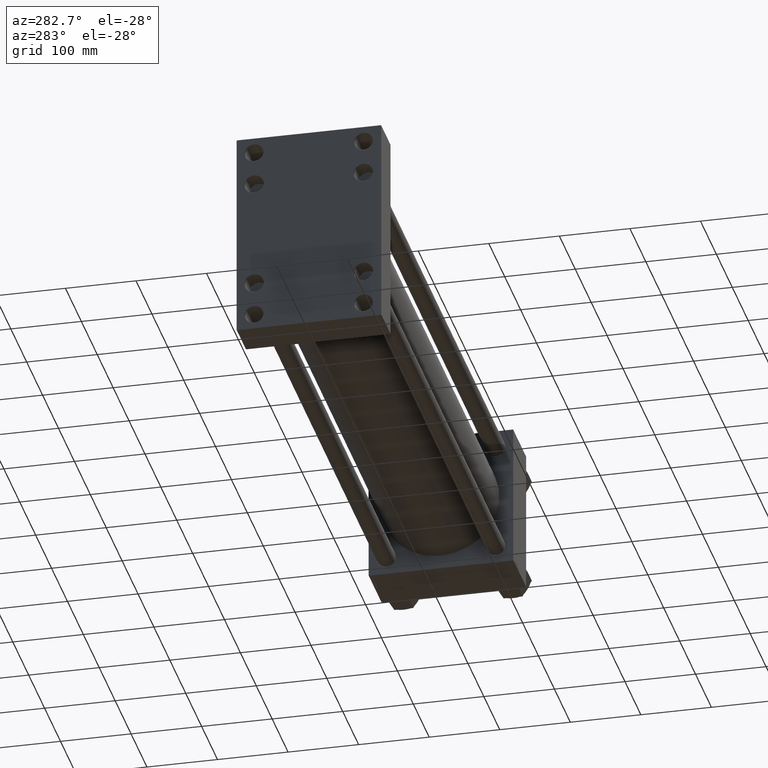
[diagram: clean part render]
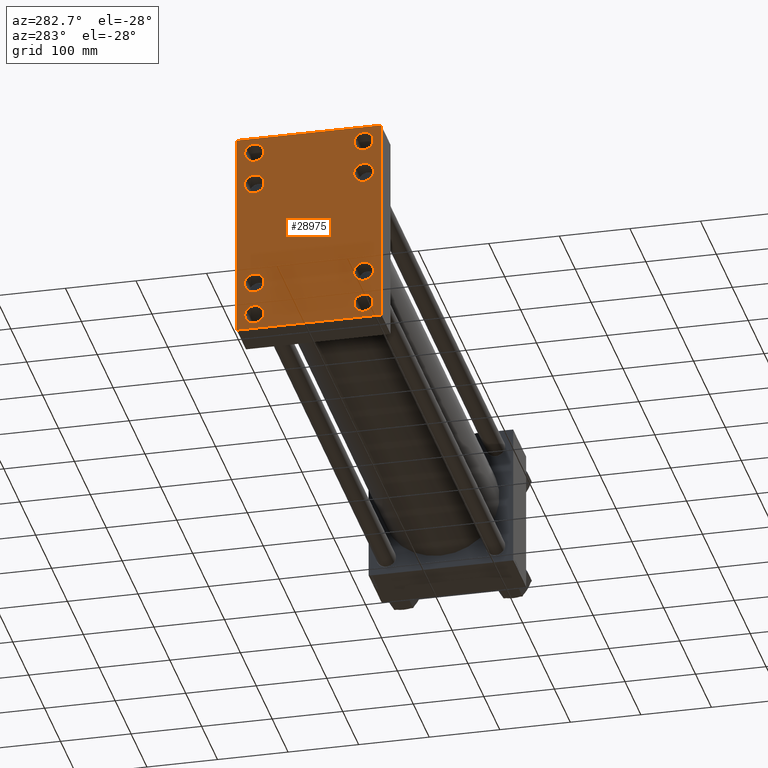
[diagram: same view with one face highlighted and labeled with its STEP entity id]
A machine part, auxiliary view. The second image highlights one B-rep face of the part: STEP entity #28975.
In plain terms, the highlighted planar face has unit normal (-1, 0, 0).
Its self-contained STEP definition (entity closure, byte-faithful):
#446 = EDGE_LOOP ( 'NONE', ( #43270, #36399, #3071, #38597, #12817, #31671, #42625, #12752 ) ) ;
#449 = EDGE_LOOP ( 'NONE', ( #43681, #2051 ) ) ;
#547 = AXIS2_PLACEMENT_3D ( 'NONE', #47538, #44466, #12550 ) ;
#579 = AXIS2_PLACEMENT_3D ( 'NONE', #5031, #16803, #28792 ) ;
#884 = LINE ( 'NONE', #31034, #19689 ) ;
#1219 = CARTESIAN_POINT ( 'NONE',  ( 0.000000000000000000, 101.9999999999999574, 148.5000000000000000 ) ) ;
#1407 = EDGE_CURVE ( 'NONE', #38072, #29740, #38946, .T. ) ;
#1585 = DIRECTION ( 'NONE',  ( 1.000000000000000000, 0.000000000000000000, 0.000000000000000000 ) ) ;
#1621 = CARTESIAN_POINT ( 'NONE',  ( 0.000000000000000000, -77.44999999999996021, -91.45000000000021600 ) ) ;
#1645 = EDGE_CURVE ( 'NONE', #17094, #46765, #37625, .T. ) ;
#1657 = DIRECTION ( 'NONE',  ( 0.000000000000000000, 0.000000000000000000, 1.000000000000000000 ) ) ;
#1718 = CARTESIAN_POINT ( 'NONE',  ( 0.000000000000000000, 77.44999999999998863, -91.45000000000020179 ) ) ;
#1993 = DIRECTION ( 'NONE',  ( 0.000000000000000000, 0.000000000000000000, 1.000000000000000000 ) ) ;
#2051 = ORIENTED_EDGE ( 'NONE', *, *, #4175, .T. ) ;
#2205 = VERTEX_POINT ( 'NONE', #15692 ) ;
#2877 = CARTESIAN_POINT ( 'NONE',  ( -0.000000000000000000, 125.2500000000028280, -125.2499999999958646 ) ) ;
#2905 = ORIENTED_EDGE ( 'NONE', *, *, #17101, .T. ) ;
#3071 = ORIENTED_EDGE ( 'NONE', *, *, #34965, .T. ) ;
#3515 = FACE_BOUND ( 'NONE', #49281, .T. ) ;
#3551 = CARTESIAN_POINT ( 'NONE',  ( 0.000000000000000000, 77.50000000000001421, 126.4999999999999716 ) ) ;
#3753 = CARTESIAN_POINT ( 'NONE',  ( 0.000000000000000000, 0.000000000000000000, 0.000000000000000000 ) ) ;
#4008 = FACE_BOUND ( 'NONE', #449, .T. ) ;
#4175 = EDGE_CURVE ( 'NONE', #33630, #34883, #15253, .T. ) ;
#4274 = ORIENTED_EDGE ( 'NONE', *, *, #27127, .T. ) ;
#4317 = VECTOR ( 'NONE', #39006, 1000.000000000000000 ) ;
#4814 = DIRECTION ( 'NONE',  ( 1.000000000000000000, 0.000000000000000000, 0.000000000000000000 ) ) ;
#4904 = CIRCLE ( 'NONE', #18010, 13.49999999999995737 ) ;
#5031 = CARTESIAN_POINT ( 'NONE',  ( 0.000000000000000000, -77.44999999999996021, 77.45000000000003126 ) ) ;
#5851 = DIRECTION ( 'NONE',  ( 0.000000000000000000, 0.000000000000000000, -1.000000000000000000 ) ) ;
#6092 = DIRECTION ( 'NONE',  ( 0.000000000000000000, 0.000000000000000000, 1.000000000000000000 ) ) ;
#6565 = DIRECTION ( 'NONE',  ( 0.000000000000000000, -1.000000000000000000, 0.000000000000000000 ) ) ;
#6738 = CARTESIAN_POINT ( 'NONE',  ( -0.000000000000000000, 125.2499999999999716, 125.2499999999999716 ) ) ;
#7604 = FACE_BOUND ( 'NONE', #47714, .T. ) ;
#8157 = CIRCLE ( 'NONE', #14720, 13.49999999999995737 ) ;
#8227 = CARTESIAN_POINT ( 'NONE',  ( 0.000000000000000000, -101.9999999999999574, 148.4999999999999716 ) ) ;
#8347 = CARTESIAN_POINT ( 'NONE',  ( 0.000000000000000000, -77.44999999999996021, 91.45000000000021600 ) ) ;
#8373 = CIRCLE ( 'NONE', #49182, 14.00000000000017941 ) ;
#8960 = AXIS2_PLACEMENT_3D ( 'NONE', #35012, #42428, #27102 ) ;
#9098 = CIRCLE ( 'NONE', #41773, 13.49999999999995737 ) ;
#9357 = CARTESIAN_POINT ( 'NONE',  ( 0.000000000000000000, -77.49999999999998579, 139.9999999999999432 ) ) ;
#9748 = DIRECTION ( 'NONE',  ( 0.000000000000000000, 0.000000000000000000, 1.000000000000000000 ) ) ;
#9920 = CARTESIAN_POINT ( 'NONE',  ( 0.000000000000000000, -101.9999999999999574, -148.5000000000000284 ) ) ;
#10105 = DIRECTION ( 'NONE',  ( 0.000000000000000000, 0.000000000000000000, 1.000000000000000000 ) ) ;
#10356 = DIRECTION ( 'NONE',  ( 1.000000000000000000, 0.000000000000000000, 0.000000000000000000 ) ) ;
#10499 = DIRECTION ( 'NONE',  ( 1.000000000000000000, 0.000000000000000000, 0.000000000000000000 ) ) ;
#10594 = EDGE_LOOP ( 'NONE', ( #39011, #17693 ) ) ;
#10817 = CARTESIAN_POINT ( 'NONE',  ( 0.000000000000000000, -77.44999999999996021, -77.45000000000003126 ) ) ;
#10885 = EDGE_CURVE ( 'NONE', #46136, #43496, #8157, .T. ) ;
#11055 = EDGE_CURVE ( 'NONE', #29943, #26909, #20388, .T. ) ;
#11303 = DIRECTION ( 'NONE',  ( 1.000000000000000000, 0.000000000000000000, 0.000000000000000000 ) ) ;
#11325 = EDGE_CURVE ( 'NONE', #47406, #32398, #47335, .T. ) ;
#12550 = DIRECTION ( 'NONE',  ( 0.000000000000000000, 0.000000000000000000, 1.000000000000000000 ) ) ;
#12741 = EDGE_CURVE ( 'NONE', #43496, #46136, #4904, .T. ) ;
#12752 = ORIENTED_EDGE ( 'NONE', *, *, #41757, .T. ) ;
#12817 = ORIENTED_EDGE ( 'NONE', *, *, #39392, .F. ) ;
#12843 = AXIS2_PLACEMENT_3D ( 'NONE', #3551, #23483, #50555 ) ;
#13036 = EDGE_CURVE ( 'NONE', #48790, #47262, #34553, .T. ) ;
#13513 = CARTESIAN_POINT ( 'NONE',  ( 0.000000000000000000, -77.44999999999996021, -77.45000000000003126 ) ) ;
#13540 = ORIENTED_EDGE ( 'NONE', *, *, #31571, .T. ) ;
#14557 = FACE_BOUND ( 'NONE', #22699, .T. ) ;
#14720 = AXIS2_PLACEMENT_3D ( 'NONE', #28159, #1585, #20255 ) ;
#14825 = CARTESIAN_POINT ( 'NONE',  ( 0.000000000000000000, -77.49999999999998579, -113.0000000000000711 ) ) ;
#14935 = EDGE_CURVE ( 'NONE', #2205, #46765, #884, .T. ) ;
#15046 = FACE_BOUND ( 'NONE', #31768, .T. ) ;
#15080 = CARTESIAN_POINT ( 'NONE',  ( 0.000000000000000000, -77.44999999999996021, 77.45000000000003126 ) ) ;
#15253 = CIRCLE ( 'NONE', #12843, 13.49999999999995737 ) ;
#15387 = DIRECTION ( 'NONE',  ( -0.000000000000000000, -0.7071067811865279218, -0.7071067811865672237 ) ) ;
#15692 = CARTESIAN_POINT ( 'NONE',  ( 0.000000000000000000, -102.4999999999999716, 147.9999999999999716 ) ) ;
#15770 = VERTEX_POINT ( 'NONE', #19691 ) ;
#16038 = CARTESIAN_POINT ( 'NONE',  ( 0.000000000000000000, 102.0000000000000142, -148.5000000000000284 ) ) ;
#16389 = AXIS2_PLACEMENT_3D ( 'NONE', #15080, #10499, #34239 ) ;
#16485 = DIRECTION ( 'NONE',  ( -0.000000000000000000, 0.7071067811865574537, 0.7071067811865376918 ) ) ;
#16803 = DIRECTION ( 'NONE',  ( 1.000000000000000000, 0.000000000000000000, 0.000000000000000000 ) ) ;
#17041 = VECTOR ( 'NONE', #6565, 1000.000000000000000 ) ;
#17053 = ORIENTED_EDGE ( 'NONE', *, *, #11325, .T. ) ;
#17094 = VERTEX_POINT ( 'NONE', #1219 ) ;
#17101 = EDGE_CURVE ( 'NONE', #26909, #29943, #45776, .T. ) ;
#17188 = VECTOR ( 'NONE', #5851, 1000.000000000000000 ) ;
#17693 = ORIENTED_EDGE ( 'NONE', *, *, #22023, .T. ) ;
#17818 = VERTEX_POINT ( 'NONE', #9920 ) ;
#17864 = VERTEX_POINT ( 'NONE', #45024 ) ;
#17953 = CARTESIAN_POINT ( 'NONE',  ( 0.000000000000000000, 77.50000000000001421, 126.4999999999999716 ) ) ;
#18010 = AXIS2_PLACEMENT_3D ( 'NONE', #25532, #41107, #6092 ) ;
#18091 = LINE ( 'NONE', #33137, #17041 ) ;
#18393 = CARTESIAN_POINT ( 'NONE',  ( 0.000000000000000000, 102.5000000000000142, 148.5000000000000000 ) ) ;
#18462 = CARTESIAN_POINT ( 'NONE',  ( 0.000000000000000000, 102.5000000000000142, 148.5000000000000000 ) ) ;
#18873 = CARTESIAN_POINT ( 'NONE',  ( 0.000000000000000000, -77.49999999999998579, 113.0000000000000142 ) ) ;
#18906 = EDGE_CURVE ( 'NONE', #34883, #33630, #9098, .T. ) ;
#18969 = VECTOR ( 'NONE', #22964, 1000.000000000000000 ) ;
#19362 = DIRECTION ( 'NONE',  ( -1.000000000000000000, 0.000000000000000000, -0.000000000000000000 ) ) ;
#19689 = VECTOR ( 'NONE', #16485, 999.9999999999998863 ) ;
#19691 = CARTESIAN_POINT ( 'NONE',  ( 0.000000000000000000, -77.44999999999996021, -63.44999999999985363 ) ) ;
#19702 = CARTESIAN_POINT ( 'NONE',  ( 0.000000000000000000, -77.49999999999998579, -126.5000000000000284 ) ) ;
#20255 = DIRECTION ( 'NONE',  ( 0.000000000000000000, 0.000000000000000000, 1.000000000000000000 ) ) ;
#20388 = CIRCLE ( 'NONE', #8960, 14.00000000000017941 ) ;
#20468 = CIRCLE ( 'NONE', #16389, 14.00000000000017941 ) ;
#20572 = AXIS2_PLACEMENT_3D ( 'NONE', #44755, #21000, #9748 ) ;
#21000 = DIRECTION ( 'NONE',  ( 1.000000000000000000, 0.000000000000000000, 0.000000000000000000 ) ) ;
#21349 = DIRECTION ( 'NONE',  ( 1.000000000000000000, 0.000000000000000000, 0.000000000000000000 ) ) ;
#21604 = CARTESIAN_POINT ( 'NONE',  ( 0.000000000000000000, 102.5000000000000142, 147.9999999999999432 ) ) ;
#21681 = DIRECTION ( 'NONE',  ( 1.000000000000000000, 0.000000000000000000, 0.000000000000000000 ) ) ;
#21736 = VERTEX_POINT ( 'NONE', #1621 ) ;
#22023 = EDGE_CURVE ( 'NONE', #29740, #38072, #30444, .T. ) ;
#22052 = CARTESIAN_POINT ( 'NONE',  ( 0.000000000000000000, 77.44999999999998863, 91.45000000000020179 ) ) ;
#22120 = CARTESIAN_POINT ( 'NONE',  ( 0.000000000000000000, 77.50000000000001421, -126.5000000000000284 ) ) ;
#22389 = EDGE_CURVE ( 'NONE', #17818, #33259, #30591, .T. ) ;
#22593 = VERTEX_POINT ( 'NONE', #23310 ) ;
#22699 = EDGE_LOOP ( 'NONE', ( #28805, #45389 ) ) ;
#22964 = DIRECTION ( 'NONE',  ( 0.000000000000000000, 0.000000000000000000, -1.000000000000000000 ) ) ;
#23057 = DIRECTION ( 'NONE',  ( 0.000000000000000000, 0.000000000000000000, 1.000000000000000000 ) ) ;
#23207 = ORIENTED_EDGE ( 'NONE', *, *, #26144, .T. ) ;
#23310 = CARTESIAN_POINT ( 'NONE',  ( 0.000000000000000000, -77.49999999999998579, -139.9999999999999716 ) ) ;
#23400 = EDGE_LOOP ( 'NONE', ( #23207, #27535 ) ) ;
#23483 = DIRECTION ( 'NONE',  ( 1.000000000000000000, 0.000000000000000000, 0.000000000000000000 ) ) ;
#23737 = AXIS2_PLACEMENT_3D ( 'NONE', #36993, #21681, #1993 ) ;
#25039 = AXIS2_PLACEMENT_3D ( 'NONE', #10817, #11303, #23057 ) ;
#25532 = CARTESIAN_POINT ( 'NONE',  ( 0.000000000000000000, -77.49999999999998579, 126.4999999999999716 ) ) ;
#26144 = EDGE_CURVE ( 'NONE', #15770, #21736, #38872, .T. ) ;
#26782 = FACE_BOUND ( 'NONE', #23400, .T. ) ;
#26909 = VERTEX_POINT ( 'NONE', #36093 ) ;
#27038 = EDGE_CURVE ( 'NONE', #22593, #33451, #36464, .T. ) ;
#27102 = DIRECTION ( 'NONE',  ( 0.000000000000000000, 0.000000000000000000, 1.000000000000000000 ) ) ;
#27127 = EDGE_CURVE ( 'NONE', #33451, #22593, #42172, .T. ) ;
#27535 = ORIENTED_EDGE ( 'NONE', *, *, #47956, .T. ) ;
#28014 = CARTESIAN_POINT ( 'NONE',  ( 0.000000000000000000, -125.2500000000042490, -125.2499999999938325 ) ) ;
#28159 = CARTESIAN_POINT ( 'NONE',  ( 0.000000000000000000, -77.49999999999998579, 126.4999999999999716 ) ) ;
#28792 = DIRECTION ( 'NONE',  ( 0.000000000000000000, 0.000000000000000000, 1.000000000000000000 ) ) ;
#28805 = ORIENTED_EDGE ( 'NONE', *, *, #10885, .T. ) ;
#28975 = ADVANCED_FACE ( 'NONE', ( #4008, #14557, #15046, #30605, #30111, #26782, #3515, #7604, #45708 ), #38773, .T. ) ;
#29382 = VERTEX_POINT ( 'NONE', #21604 ) ;
#29740 = VERTEX_POINT ( 'NONE', #38781 ) ;
#29943 = VERTEX_POINT ( 'NONE', #1718 ) ;
#30111 = FACE_BOUND ( 'NONE', #44409, .T. ) ;
#30444 = CIRCLE ( 'NONE', #39414, 13.49999999999995737 ) ;
#30591 = LINE ( 'NONE', #28014, #4317 ) ;
#30605 = FACE_BOUND ( 'NONE', #10594, .T. ) ;
#30961 = DIRECTION ( 'NONE',  ( 0.000000000000000000, 0.7071067811865474617, -0.7071067811865474617 ) ) ;
#31034 = CARTESIAN_POINT ( 'NONE',  ( -0.000000000000000000, -125.2499999999985221, 125.2500000000020037 ) ) ;
#31549 = AXIS2_PLACEMENT_3D ( 'NONE', #19702, #34772, #35280 ) ;
#31571 = EDGE_CURVE ( 'NONE', #41191, #17864, #32412, .T. ) ;
#31671 = ORIENTED_EDGE ( 'NONE', *, *, #14935, .T. ) ;
#31768 = EDGE_LOOP ( 'NONE', ( #4274, #31991 ) ) ;
#31907 = VECTOR ( 'NONE', #15387, 1000.000000000000000 ) ;
#31991 = ORIENTED_EDGE ( 'NONE', *, *, #27038, .T. ) ;
#32367 = ORIENTED_EDGE ( 'NONE', *, *, #40041, .T. ) ;
#32398 = VERTEX_POINT ( 'NONE', #22052 ) ;
#32412 = CIRCLE ( 'NONE', #579, 14.00000000000017941 ) ;
#33137 = CARTESIAN_POINT ( 'NONE',  ( 0.000000000000000000, 102.5000000000000142, -148.5000000000000284 ) ) ;
#33163 = DIRECTION ( 'NONE',  ( 0.000000000000000000, 0.000000000000000000, 1.000000000000000000 ) ) ;
#33259 = VERTEX_POINT ( 'NONE', #49870 ) ;
#33438 = ORIENTED_EDGE ( 'NONE', *, *, #11055, .T. ) ;
#33451 = VERTEX_POINT ( 'NONE', #14825 ) ;
#33630 = VERTEX_POINT ( 'NONE', #48229 ) ;
#34030 = DIRECTION ( 'NONE',  ( 0.000000000000000000, -1.000000000000000000, -1.353930517835556973E-16 ) ) ;
#34078 = CARTESIAN_POINT ( 'NONE',  ( 0.000000000000000000, 77.44999999999998863, 63.44999999999983942 ) ) ;
#34239 = DIRECTION ( 'NONE',  ( 0.000000000000000000, 0.000000000000000000, 1.000000000000000000 ) ) ;
#34242 = CARTESIAN_POINT ( 'NONE',  ( 0.000000000000000000, 102.5000000000000142, -147.9999999999998863 ) ) ;
#34553 = LINE ( 'NONE', #2877, #31907 ) ;
#34772 = DIRECTION ( 'NONE',  ( 1.000000000000000000, 0.000000000000000000, 0.000000000000000000 ) ) ;
#34786 = CARTESIAN_POINT ( 'NONE',  ( 0.000000000000000000, 77.50000000000001421, -113.0000000000000711 ) ) ;
#34883 = VERTEX_POINT ( 'NONE', #40817 ) ;
#34939 = DIRECTION ( 'NONE',  ( -0.000000000000000000, 0.000000000000000000, 1.000000000000000000 ) ) ;
#34965 = EDGE_CURVE ( 'NONE', #47262, #17818, #18091, .T. ) ;
#35012 = CARTESIAN_POINT ( 'NONE',  ( 0.000000000000000000, 77.44999999999998863, -77.45000000000001705 ) ) ;
#35280 = DIRECTION ( 'NONE',  ( 0.000000000000000000, 0.000000000000000000, 1.000000000000000000 ) ) ;
#36093 = CARTESIAN_POINT ( 'NONE',  ( 0.000000000000000000, 77.44999999999998863, -63.44999999999983942 ) ) ;
#36399 = ORIENTED_EDGE ( 'NONE', *, *, #13036, .T. ) ;
#36464 = CIRCLE ( 'NONE', #31549, 13.49999999999995737 ) ;
#36747 = ORIENTED_EDGE ( 'NONE', *, *, #46897, .T. ) ;
#36993 = CARTESIAN_POINT ( 'NONE',  ( 0.000000000000000000, 77.44999999999998863, -77.45000000000001705 ) ) ;
#37331 = AXIS2_PLACEMENT_3D ( 'NONE', #22120, #10356, #10105 ) ;
#37625 = LINE ( 'NONE', #18462, #39751 ) ;
#38072 = VERTEX_POINT ( 'NONE', #34786 ) ;
#38597 = ORIENTED_EDGE ( 'NONE', *, *, #22389, .T. ) ;
#38773 = PLANE ( 'NONE',  #50279 ) ;
#38781 = CARTESIAN_POINT ( 'NONE',  ( 0.000000000000000000, 77.50000000000001421, -139.9999999999999716 ) ) ;
#38872 = CIRCLE ( 'NONE', #25039, 14.00000000000017941 ) ;
#38946 = CIRCLE ( 'NONE', #37331, 13.49999999999995737 ) ;
#39006 = DIRECTION ( 'NONE',  ( 0.000000000000000000, -0.7071067811865181518, 0.7071067811865769936 ) ) ;
#39011 = ORIENTED_EDGE ( 'NONE', *, *, #1407, .T. ) ;
#39392 = EDGE_CURVE ( 'NONE', #2205, #33259, #48257, .T. ) ;
#39414 = AXIS2_PLACEMENT_3D ( 'NONE', #39833, #4814, #39585 ) ;
#39585 = DIRECTION ( 'NONE',  ( 0.000000000000000000, 0.000000000000000000, 1.000000000000000000 ) ) ;
#39751 = VECTOR ( 'NONE', #34030, 1000.000000000000000 ) ;
#39833 = CARTESIAN_POINT ( 'NONE',  ( 0.000000000000000000, 77.50000000000001421, -126.5000000000000284 ) ) ;
#40041 = EDGE_CURVE ( 'NONE', #17864, #41191, #20468, .T. ) ;
#40686 = DIRECTION ( 'NONE',  ( 1.000000000000000000, 0.000000000000000000, 0.000000000000000000 ) ) ;
#40817 = CARTESIAN_POINT ( 'NONE',  ( 0.000000000000000000, 77.50000000000001421, 139.9999999999999432 ) ) ;
#40862 = CARTESIAN_POINT ( 'NONE',  ( 0.000000000000000000, -102.4999999999999716, 148.4999999999999716 ) ) ;
#41107 = DIRECTION ( 'NONE',  ( 1.000000000000000000, 0.000000000000000000, 0.000000000000000000 ) ) ;
#41191 = VERTEX_POINT ( 'NONE', #8347 ) ;
#41748 = LINE ( 'NONE', #6738, #45706 ) ;
#41757 = EDGE_CURVE ( 'NONE', #17094, #29382, #41748, .T. ) ;
#41773 = AXIS2_PLACEMENT_3D ( 'NONE', #17953, #40686, #48337 ) ;
#42172 = CIRCLE ( 'NONE', #547, 13.49999999999995737 ) ;
#42428 = DIRECTION ( 'NONE',  ( 1.000000000000000000, 0.000000000000000000, 0.000000000000000000 ) ) ;
#42583 = CIRCLE ( 'NONE', #20572, 14.00000000000017941 ) ;
#42625 = ORIENTED_EDGE ( 'NONE', *, *, #1645, .F. ) ;
#43270 = ORIENTED_EDGE ( 'NONE', *, *, #47715, .T. ) ;
#43496 = VERTEX_POINT ( 'NONE', #18873 ) ;
#43681 = ORIENTED_EDGE ( 'NONE', *, *, #18906, .T. ) ;
#44158 = DIRECTION ( 'NONE',  ( 1.000000000000000000, 0.000000000000000000, 0.000000000000000000 ) ) ;
#44409 = EDGE_LOOP ( 'NONE', ( #13540, #32367 ) ) ;
#44466 = DIRECTION ( 'NONE',  ( 1.000000000000000000, 0.000000000000000000, 0.000000000000000000 ) ) ;
#44755 = CARTESIAN_POINT ( 'NONE',  ( 0.000000000000000000, 77.44999999999998863, 77.45000000000001705 ) ) ;
#45024 = CARTESIAN_POINT ( 'NONE',  ( 0.000000000000000000, -77.44999999999996021, 63.44999999999985363 ) ) ;
#45389 = ORIENTED_EDGE ( 'NONE', *, *, #12741, .T. ) ;
#45706 = VECTOR ( 'NONE', #30961, 1000.000000000000114 ) ;
#45708 = FACE_OUTER_BOUND ( 'NONE', #446, .T. ) ;
#45776 = CIRCLE ( 'NONE', #23737, 14.00000000000017941 ) ;
#46136 = VERTEX_POINT ( 'NONE', #9357 ) ;
#46447 = LINE ( 'NONE', #18393, #18969 ) ;
#46765 = VERTEX_POINT ( 'NONE', #8227 ) ;
#46897 = EDGE_CURVE ( 'NONE', #32398, #47406, #42583, .T. ) ;
#47262 = VERTEX_POINT ( 'NONE', #16038 ) ;
#47335 = CIRCLE ( 'NONE', #49788, 14.00000000000017941 ) ;
#47406 = VERTEX_POINT ( 'NONE', #34078 ) ;
#47538 = CARTESIAN_POINT ( 'NONE',  ( 0.000000000000000000, -77.49999999999998579, -126.5000000000000284 ) ) ;
#47714 = EDGE_LOOP ( 'NONE', ( #36747, #17053 ) ) ;
#47715 = EDGE_CURVE ( 'NONE', #29382, #48790, #46447, .T. ) ;
#47956 = EDGE_CURVE ( 'NONE', #21736, #15770, #8373, .T. ) ;
#48229 = CARTESIAN_POINT ( 'NONE',  ( 0.000000000000000000, 77.50000000000001421, 113.0000000000000142 ) ) ;
#48257 = LINE ( 'NONE', #40862, #17188 ) ;
#48337 = DIRECTION ( 'NONE',  ( 0.000000000000000000, 0.000000000000000000, 1.000000000000000000 ) ) ;
#48672 = CARTESIAN_POINT ( 'NONE',  ( 0.000000000000000000, 77.44999999999998863, 77.45000000000001705 ) ) ;
#48790 = VERTEX_POINT ( 'NONE', #34242 ) ;
#49182 = AXIS2_PLACEMENT_3D ( 'NONE', #13513, #44158, #33163 ) ;
#49281 = EDGE_LOOP ( 'NONE', ( #2905, #33438 ) ) ;
#49788 = AXIS2_PLACEMENT_3D ( 'NONE', #48672, #21349, #1657 ) ;
#49870 = CARTESIAN_POINT ( 'NONE',  ( 0.000000000000000000, -102.4999999999999716, -147.9999999999999716 ) ) ;
#50279 = AXIS2_PLACEMENT_3D ( 'NONE', #3753, #19362, #34939 ) ;
#50555 = DIRECTION ( 'NONE',  ( 0.000000000000000000, 0.000000000000000000, 1.000000000000000000 ) ) ;